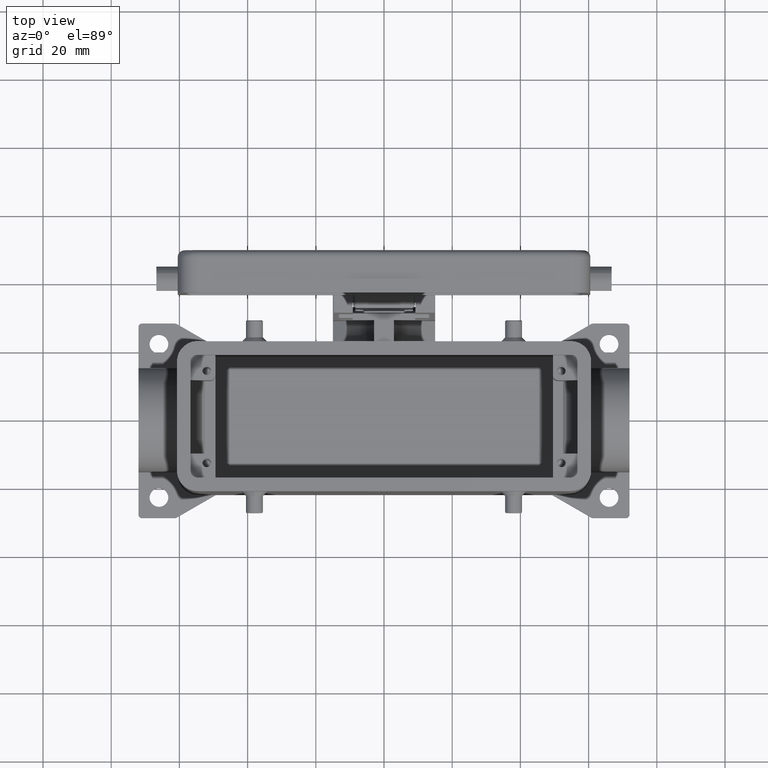
[diagram: clean part render]
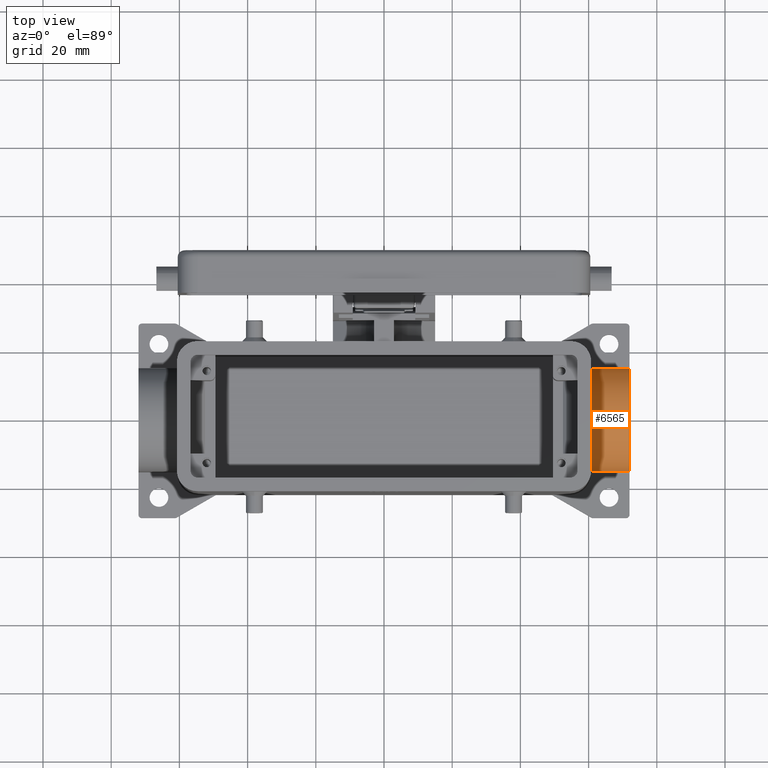
[diagram: same view with one face highlighted and labeled with its STEP entity id]
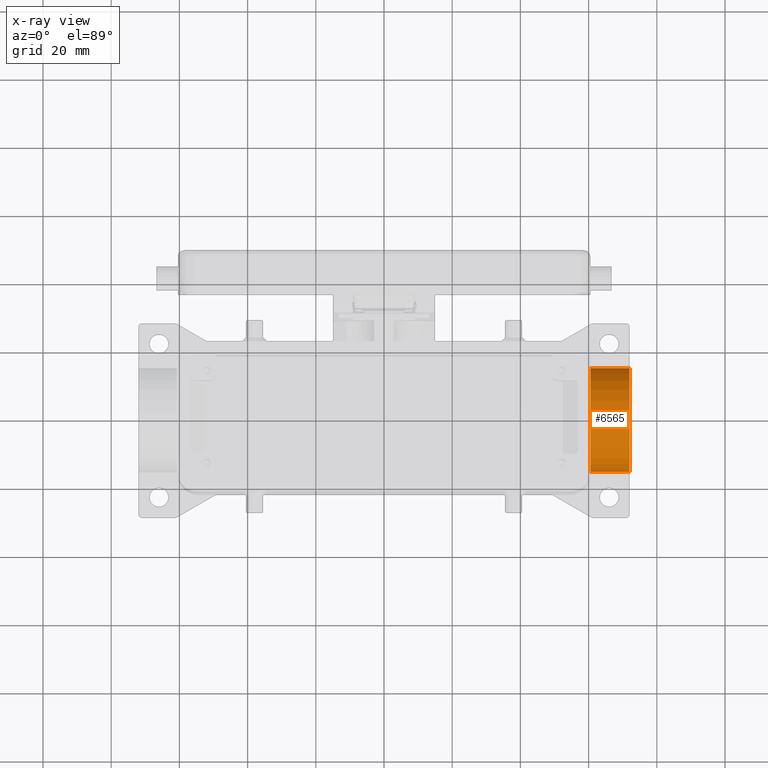
[diagram: x-ray of the same camera — body ghosted, the highlighted face saturated]
A machine part, top view. The second image highlights one B-rep face of the part: STEP entity #6565.
The next image is the same camera in x-ray: the body ghosted, the highlighted face saturated — about 1% of this face is hidden behind the body in this view.
In plain terms, the highlighted cylindrical surface (partial cylindrical patch) has radius 15.14 mm, axis along (-1, 0, 0).
Its self-contained STEP definition (entity closure, byte-faithful):
#5497=CARTESIAN_POINT('',(72.0,15.140000000000002,-33.109999999999992));
#5498=VERTEX_POINT('',#5497);
#5505=CARTESIAN_POINT('',(72.0,-15.140000000000002,-33.109999999999992));
#5506=VERTEX_POINT('',#5505);
#5507=CARTESIAN_POINT('',(72.0,0.0,-33.109999999999992));
#5508=DIRECTION('',(-1.0,0.0,0.0));
#5509=DIRECTION('',(0.0,-1.0,0.0));
#5510=AXIS2_PLACEMENT_3D('',#5507,#5508,#5509);
#5511=CIRCLE('',#5510,15.140000000000002);
#5512=EDGE_CURVE('',#5506,#5498,#5511,.T.);
#5984=CARTESIAN_POINT('',(60.500000000000000,-15.140000000000002,-33.109999999999992));
#5985=VERTEX_POINT('',#5984);
#5992=CARTESIAN_POINT('',(60.500000000000000,15.140000000000002,-33.109999999999992));
#5993=VERTEX_POINT('',#5992);
#5994=CARTESIAN_POINT('',(60.500000000000000,0.0,-33.109999999999992));
#5995=DIRECTION('',(-1.0,0.0,0.0));
#5996=DIRECTION('',(0.0,-1.0,0.0));
#5997=AXIS2_PLACEMENT_3D('',#5994,#5995,#5996);
#5998=CIRCLE('',#5997,15.140000000000002);
#5999=EDGE_CURVE('',#5985,#5993,#5998,.T.);
#6042=CARTESIAN_POINT('',(72.0,-15.140000000000002,-33.109999999999992));
#6043=DIRECTION('',(-1.0,0.0,0.0));
#6044=VECTOR('',#6043,11.500000000000000);
#6045=LINE('',#6042,#6044);
#6046=EDGE_CURVE('',#5506,#5985,#6045,.T.);
#6544=CARTESIAN_POINT('',(72.0,15.140000000000002,-33.109999999999992));
#6545=DIRECTION('',(-1.0,0.0,0.0));
#6546=VECTOR('',#6545,11.500000000000000);
#6547=LINE('',#6544,#6546);
#6548=EDGE_CURVE('',#5498,#5993,#6547,.T.);
#6554=CARTESIAN_POINT('',(72.0,0.0,-33.109999999999992));
#6555=DIRECTION('',(-1.0,0.0,0.0));
#6556=DIRECTION('',(0.0,-1.0,0.0));
#6557=AXIS2_PLACEMENT_3D('',#6554,#6555,#6556);
#6558=CYLINDRICAL_SURFACE('',#6557,15.140000000000002);
#6559=ORIENTED_EDGE('',*,*,#6046,.F.);
#6560=ORIENTED_EDGE('',*,*,#5512,.T.);
#6561=ORIENTED_EDGE('',*,*,#6548,.T.);
#6562=ORIENTED_EDGE('',*,*,#5999,.F.);
#6563=EDGE_LOOP('',(#6559,#6560,#6561,#6562));
#6564=FACE_OUTER_BOUND('',#6563,.T.);
#6565=ADVANCED_FACE('',(#6564),#6558,.T.);